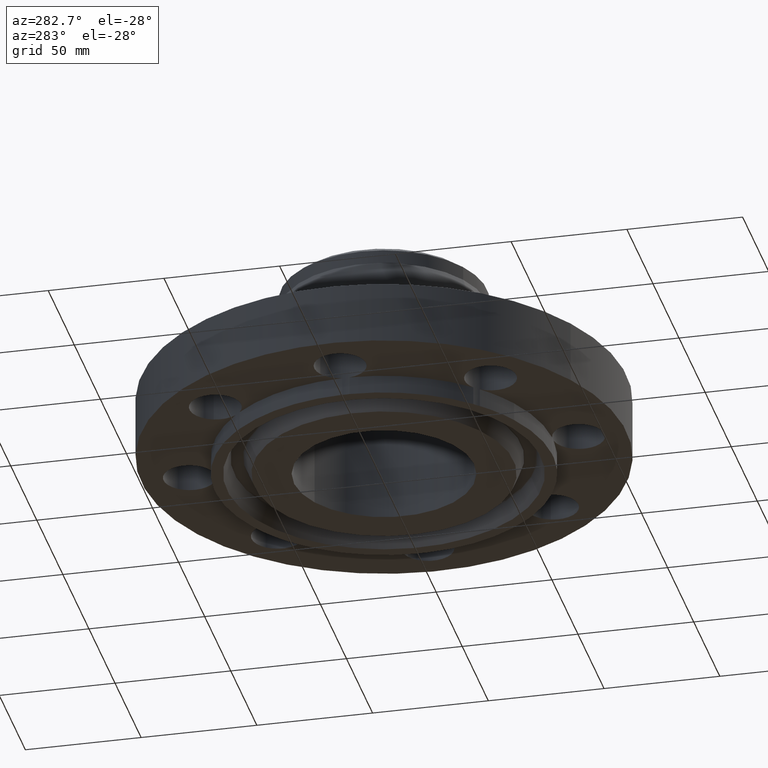
[diagram: clean part render]
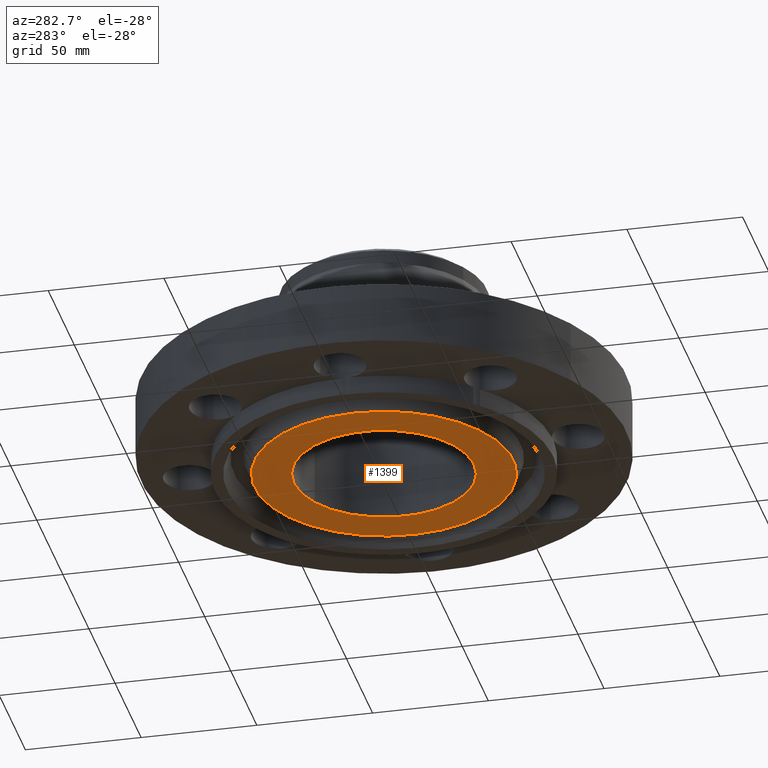
[diagram: same view with one face highlighted and labeled with its STEP entity id]
A machine part, auxiliary view. The second image highlights one B-rep face of the part: STEP entity #1399.
In plain terms, the highlighted planar face has unit normal (0, 0, -1).
Its self-contained STEP definition (entity closure, byte-faithful):
#473=AXIS2_PLACEMENT_3D('Circle Axis2P3D',#471,#472,$) ;
#492=AXIS2_PLACEMENT_3D('Circle Axis2P3D',#490,#491,$) ;
#1336=AXIS2_PLACEMENT_3D('Plane Axis2P3D',#1333,#1334,#1335) ;
#1379=AXIS2_PLACEMENT_3D('Circle Axis2P3D',#1377,#1378,$) ;
#1388=AXIS2_PLACEMENT_3D('Circle Axis2P3D',#1386,#1387,$) ;
#468=CARTESIAN_POINT('Vertex',(-0.735438776222,-1.34621164995,-0.313000000001)) ;
#471=CARTESIAN_POINT('Axis2P3D Location',(0.,0.,-0.313000000001)) ;
#475=CARTESIAN_POINT('Vertex',(0.735438776222,1.34621164995,-0.313000000001)) ;
#490=CARTESIAN_POINT('Axis2P3D Location',(0.,0.,-0.313000000001)) ;
#1333=CARTESIAN_POINT('Axis2P3D Location',(0.,1.53400000001,-0.313000000001)) ;
#1377=CARTESIAN_POINT('Axis2P3D Location',(2.79741234551E-016,2.79741234551E-016,-0.313000000001)) ;
#1381=CARTESIAN_POINT('Vertex',(-1.05617446155,1.93331438385,-0.313000000001)) ;
#1383=CARTESIAN_POINT('Vertex',(1.05617446155,-1.93331438385,-0.313000000001)) ;
#1386=CARTESIAN_POINT('Axis2P3D Location',(-5.59482469102E-016,0.,-0.313000000001)) ;
#472=DIRECTION('Axis2P3D Direction',(0.,0.,-0.0393700787402)) ;
#491=DIRECTION('Axis2P3D Direction',(0.,0.,-0.0393700787402)) ;
#1334=DIRECTION('Axis2P3D Direction',(0.,0.,-0.0393700787402)) ;
#1335=DIRECTION('Axis2P3D XDirection',(0.0393700787402,0.,0.)) ;
#1378=DIRECTION('Axis2P3D Direction',(0.,0.,-0.0393700787402)) ;
#1387=DIRECTION('Axis2P3D Direction',(0.,0.,-0.0393700787402)) ;
#1392=ORIENTED_EDGE('',*,*,#1385,.T.) ;
#1393=ORIENTED_EDGE('',*,*,#1390,.T.) ;
#1396=ORIENTED_EDGE('',*,*,#494,.F.) ;
#1397=ORIENTED_EDGE('',*,*,#477,.F.) ;
#1398=FACE_BOUND('',#1395,.T.) ;
#1399=ADVANCED_FACE('PartBody',(#1394,#1398),#1337,.T.) ;
#474=CIRCLE('generated circle',#473,1.53400000001) ;
#493=CIRCLE('generated circle',#492,1.53400000001) ;
#1380=CIRCLE('generated circle',#1379,2.20300000001) ;
#1389=CIRCLE('generated circle',#1388,2.20300000001) ;
#477=EDGE_CURVE('',#469,#476,#474,.T.) ;
#494=EDGE_CURVE('',#476,#469,#493,.T.) ;
#1385=EDGE_CURVE('',#1382,#1384,#1380,.T.) ;
#1390=EDGE_CURVE('',#1384,#1382,#1389,.T.) ;
#1391=EDGE_LOOP('',(#1392,#1393)) ;
#1395=EDGE_LOOP('',(#1396,#1397)) ;
#1394=FACE_OUTER_BOUND('',#1391,.T.) ;
#1337=PLANE('',#1336) ;
#469=VERTEX_POINT('',#468) ;
#476=VERTEX_POINT('',#475) ;
#1382=VERTEX_POINT('',#1381) ;
#1384=VERTEX_POINT('',#1383) ;